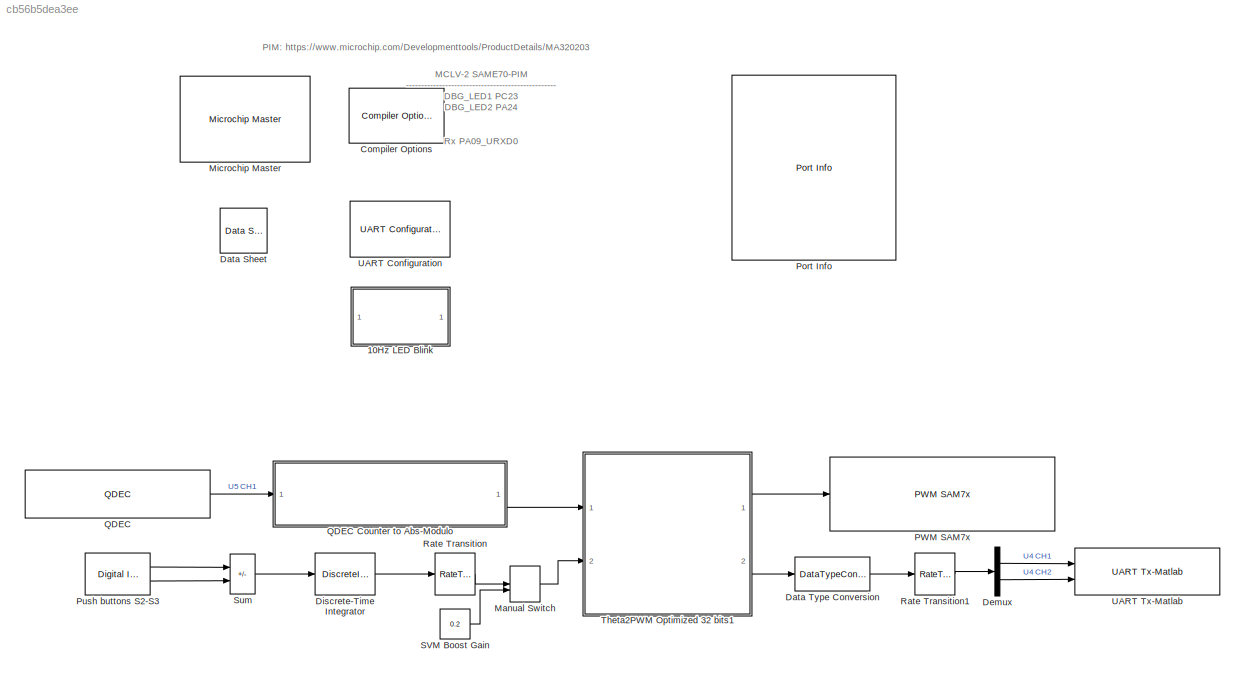
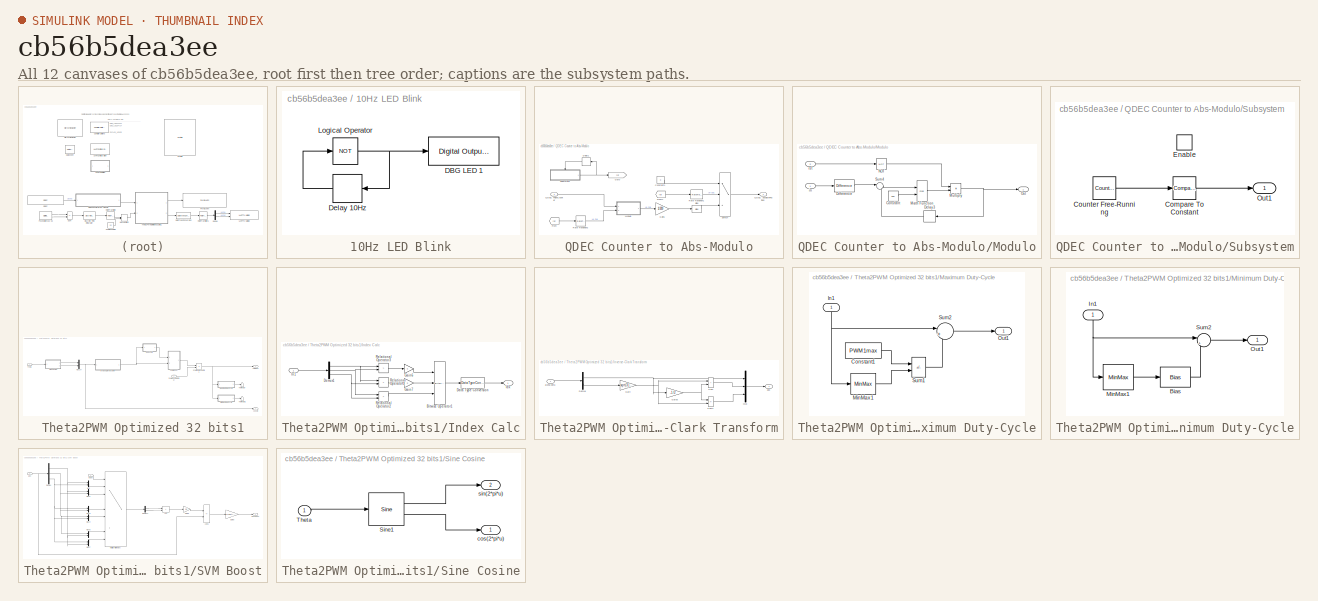
[diagram: thumbnail index - all 12 canvases of the model, root first then tree order]
MODEL slx_cb56b5dea3ee
KIND model
CONFIG AbsTol = auto
CONFIG EnableMultiTasking = on
CONFIG FixedStep = 50e-6
CONFIG MaxStep = auto
CONFIG MinStep = auto
CONFIG RelTol = 1e-3
CONFIG SampleTimeConstraint = Unconstrained
CONFIG Solver = FixedStepDiscrete
CONFIG SolverName = FixedStepDiscrete
CONFIG StartTime = 0.0
CONFIG StopTime = 10.0
BLOCK [SubSystem] 10Hz LED Blink
  Ports = []
  RequestExecContextInheritance = off
BLOCK [Reference] 10Hz LED Blink/DBG LED 1  REF=MCHP_Blockset/Digital IO/Digital Output
Write
  Ports = [1]
  SourceBlock = MCHP_Blockset/Digital IO/Digital Output\nWrite
  SourceProductName = MPLAB Device Blocks for Simulink
  SourceType = Output driver for Digital Output Pins
BLOCK [Delay] 10Hz LED Blink/Delay 10Hz
  DelayLength = 1
  InitialCondition = 0
  InputPortMap = u0
  Ports = [1, 1]
  SampleTime = .05
BLOCK [Logic] 10Hz LED Blink/Logical Operator
  AllPortsSameDT = off
  Operator = NOT
  OutDataTypeStr = boolean
  Ports = [1, 1]
BLOCK [Reference] Compiler Options  REF=MCHP_Blockset/System Configuration/Compiler Options
  Ports = []
  Priority = 1
  SourceBlock = MCHP_Blockset/System Configuration/Compiler Options
  SourceProductName = MPLAB Device Blocks for Simulink
BLOCK [Reference] Data Sheet  REF=MCHP_Blockset/System Info/Data Sheet
  AttributesFormatString = %<cpy_MCHP_Id>
  Ports = []
  SourceBlock = MCHP_Blockset/System Info/Data Sheet
  SourceProductName = MPLAB Device Blocks for Simulink
BLOCK [DataTypeConversion] Data Type Conversion
  ConvertRealWorld = Stored Integer (SI)
  OutDataTypeStr = int16
  RndMeth = Floor
  SaturateOnIntegerOverflow = off
BLOCK [Demux] Demux
  Outputs = 2
  Ports = [1, 2]
BLOCK [DiscreteIntegrator] Discrete-Time Integrator
  ICPrevOutput = DiscIntNeverNeededParam
  ICPrevScaledInput = DiscIntNeverNeededParam
  InitialCondition = 0.2
  InitialConditionSetting = Auto
  LimitOutput = on
  LowerSaturationLimit = 0
  Ports = [1, 1]
  SampleTime = -1
  UpperSaturationLimit = 0.8
  gainval = 0.3
BLOCK [ManualSwitch] Manual Switch
BLOCK [Reference] Microchip Master  REF=MCHP_Blockset/System Configuration/Microchip Master
  Ports = []
  Priority = 1
  SourceBlock = MCHP_Blockset/System Configuration/Microchip Master
  SourceProductName = MPLAB Device Blocks for Simulink
BLOCK [Reference] PWM SAM7x  REF=MCHP_Blockset/PWM IO/PWM SAM7x
  Ports = [1]
  Priority = -2000
  SourceBlock = MCHP_Blockset/PWM IO/PWM SAM7x
  SourceProductName = MPLAB Device Blocks for Simulink
  SourceType = PWM for SAMx7
  UserDataPersistent = on
BLOCK [Reference] Port Info  REF=MCHP_Blockset/System Info/Port Info
  Ports = []
  SourceBlock = MCHP_Blockset/System Info/Port Info
  SourceProductName = MPLAB Device Blocks for Simulink
BLOCK [Reference] Push buttons S2-S3  REF=MCHP_Blockset/Digital IO/Digital Input
  Ports = [0, 2]
  SourceBlock = MCHP_Blockset/Digital IO/Digital Input
  SourceProductName = MPLAB Device Blocks for Simulink
  SourceType = Input driver for Digital Input Pins
BLOCK [Reference] QDEC  REF=MCHP_Blockset/QEI/QDEC
  Ports = [0, 1]
  SourceBlock = MCHP_Blockset/QEI/QDEC
  SourceProductName = MPLAB Device Blocks for Simulink
  SourceType = Ouput Driver for Quadrature Decoder (QDEC)
  UserDataPersistent = on
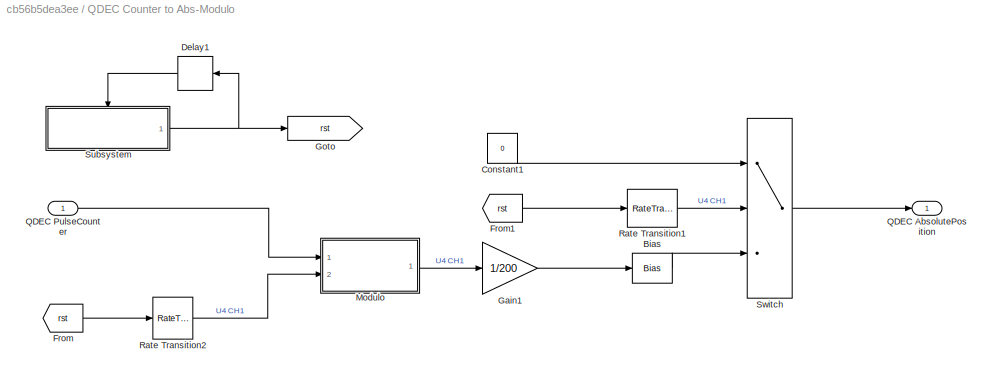
BLOCK [SubSystem] QDEC Counter to Abs-Modulo
  Ports = [1, 1]
  RequestExecContextInheritance = off
BLOCK [Bias] QDEC Counter to Abs-Modulo/Bias
  Bias = 0.26
  SaturateOnIntegerOverflow = off
BLOCK [Constant] QDEC Counter to Abs-Modulo/Constant1
  OutDataTypeStr = Inherit: Inherit via back propagation
  SampleTime = -1
  Value = 0
BLOCK [Delay] QDEC Counter to Abs-Modulo/Delay1
  DelayLength = 1
  InitialCondition = 1
  InputPortMap = u0
  Ports = [1, 1]
BLOCK [From] QDEC Counter to Abs-Modulo/From
  GotoTag = rst
BLOCK [From] QDEC Counter to Abs-Modulo/From1
  GotoTag = rst
BLOCK [Gain] QDEC Counter to Abs-Modulo/Gain1
  Gain = 1/200
  OutDataTypeStr = fixdt(0,32,32)
BLOCK [Goto] QDEC Counter to Abs-Modulo/Goto
  GotoTag = rst
BLOCK [SubSystem] QDEC Counter to Abs-Modulo/Modulo
  Ports = [2, 1]
  RequestExecContextInheritance = off
BLOCK [Constant] QDEC Counter to Abs-Modulo/Modulo/Constant
  OutDataTypeStr = Inherit: Inherit via back propagation
  Value = 200
BLOCK [Delay] QDEC Counter to Abs-Modulo/Modulo/Delay3
  DelayLength = 1
  InitialCondition = 0
  InputPortMap = u0
  Ports = [1, 1]
BLOCK [Reference] QDEC Counter to Abs-Modulo/Modulo/Difference  REF=simulink/Discrete/Difference
  Ports = [1, 1]
  SourceBlock = simulink/Discrete/Difference
  SourceProductBaseCode = SL
  SourceType = Difference
BLOCK [Math] QDEC Counter to Abs-Modulo/Modulo/Math Function
  Operator = mod
  Ports = [2, 1]
BLOCK [Product] QDEC Counter to Abs-Modulo/Modulo/Multiply
  OutDataTypeStr = uint16
  Ports = [2, 1]
BLOCK [Logic] QDEC Counter to Abs-Modulo/Modulo/NOT
  AllPortsSameDT = off
  IconShape = distinctive
  Operator = NOT
  OutDataTypeStr = boolean
  Ports = [1, 1]
BLOCK [Outport] QDEC Counter to Abs-Modulo/Modulo/Out
  VectorParamsAs1DForOutWhenUnconnected = off
BLOCK [Sum] QDEC Counter to Abs-Modulo/Modulo/Sum4
  AccumDataTypeStr = Inherit: Same as first input
  Inputs = |++
  OutDataTypeStr = Inherit: Same as first input
  Ports = [2, 1]
BLOCK [Inport] QDEC Counter to Abs-Modulo/Modulo/in
BLOCK [Inport] QDEC Counter to Abs-Modulo/Modulo/rst
  OutDataTypeStr = boolean
  Port = 2
BLOCK [Outport] QDEC Counter to Abs-Modulo/QDEC AbsolutePosition
  VectorParamsAs1DForOutWhenUnconnected = off
BLOCK [Inport] QDEC Counter to Abs-Modulo/QDEC PulseCounter
BLOCK [RateTransition] QDEC Counter to Abs-Modulo/Rate Transition1
  Deterministic = off
BLOCK [RateTransition] QDEC Counter to Abs-Modulo/Rate Transition2
  Deterministic = off
BLOCK [SubSystem] QDEC Counter to Abs-Modulo/Subsystem
  Ports = [0, 1, 1]
  RequestExecContextInheritance = off
BLOCK [Reference] QDEC Counter to Abs-Modulo/Subsystem/Compare To Constant  REF=simulink/Logic and Bit
Operations/Compare
To Constant
  Ports = [1, 1]
  SourceBlock = simulink/Logic and Bit\nOperations/Compare\nTo Constant
  SourceProductBaseCode = SL
  SourceType = Compare To Constant
BLOCK [Reference] QDEC Counter to Abs-Modulo/Subsystem/Counter Free-Running  REF=simulink/Sources/Counter
Free-Running
  Ports = [0, 1]
  SourceBlock = simulink/Sources/Counter\nFree-Running
  SourceProductBaseCode = SL
  SourceType = Counter Free-Running
BLOCK [EnablePort] QDEC Counter to Abs-Modulo/Subsystem/Enable
  Ports = []
BLOCK [Outport] QDEC Counter to Abs-Modulo/Subsystem/Out1
  VectorParamsAs1DForOutWhenUnconnected = off
BLOCK [Switch] QDEC Counter to Abs-Modulo/Switch
  Criteria = u2 ~= 0
  InputSameDT = off
  SaturateOnIntegerOverflow = off
BLOCK [RateTransition] Rate Transition
BLOCK [RateTransition] Rate Transition1
  OutPortSampleTime = .01
BLOCK [Constant] SVM Boost Gain
  OutDataTypeStr = Inherit: Inherit via back propagation
  Value = 0.2
BLOCK [Sum] Sum
  AccumDataTypeStr = single
  IconShape = rectangular
  Inputs = +-
  OutDataTypeStr = single
  Ports = [2, 1]
BLOCK [SubSystem] Theta2PWM Optimized 32 bits1
  Ports = [2, 2]
  RequestExecContextInheritance = off
  VariantControl = Optimized
BLOCK [SubSystem] Theta2PWM Optimized 32 bits1/Index Calc
  Ports = [1, 1]
  RequestExecContextInheritance = off
BLOCK [Reference] Theta2PWM Optimized 32 bits1/Index Calc/Bitwise Operator1  REF=simulink/Logic and Bit
Operations/Bitwise
Operator
  Ports = [3, 1]
  SourceBlock = simulink/Logic and Bit\nOperations/Bitwise\nOperator
  SourceProductBaseCode = SL
  SourceType = Bitwise Operator
BLOCK [DataTypeConversion] Theta2PWM Optimized 32 bits1/Index Calc/Data Type Conversion
  ConvertRealWorld = Stored Integer (SI)
  OutDataTypeStr = uint32
  RndMeth = Floor
  SaturateOnIntegerOverflow = off
BLOCK [Demux] Theta2PWM Optimized 32 bits1/Index Calc/Demux1
  Outputs = 3
  Ports = [1, 3]
BLOCK [Gain] Theta2PWM Optimized 32 bits1/Index Calc/Gain6
  Gain = 4
  OutDataTypeStr = Inherit: Same as input
BLOCK [Gain] Theta2PWM Optimized 32 bits1/Index Calc/Gain7
  Gain = 2
  OutDataTypeStr = Inherit: Same as input
BLOCK [Outport] Theta2PWM Optimized 32 bits1/Index Calc/Idx
  VectorParamsAs1DForOutWhenUnconnected = off
BLOCK [Inport] Theta2PWM Optimized 32 bits1/Index Calc/In1
BLOCK [RelationalOperator] Theta2PWM Optimized 32 bits1/Index Calc/Relational Operator1
  InputSameDT = off
  Operator = >
  OutDataTypeStr = fixdt(0,32)
  Ports = [2, 1]
BLOCK [RelationalOperator] Theta2PWM Optimized 32 bits1/Index Calc/Relational Operator2
  InputSameDT = off
  Operator = >
  OutDataTypeStr = fixdt(0,32)
  Ports = [2, 1]
BLOCK [RelationalOperator] Theta2PWM Optimized 32 bits1/Index Calc/Relational Operator3
  InputSameDT = off
  Operator = >
  OutDataTypeStr = fixdt(0,32)
  Ports = [2, 1]
BLOCK [SubSystem] Theta2PWM Optimized 32 bits1/Inverse-Clark Transform
  Ports = [1, 1]
  RequestExecContextInheritance = off
BLOCK [Demux] Theta2PWM Optimized 32 bits1/Inverse-Clark Transform/Demux
  Outputs = 2
  Ports = [1, 2]
BLOCK [Gain] Theta2PWM Optimized 32 bits1/Inverse-Clark Transform/Gain
  Gain = sqrt(3)/2
  OutDataTypeStr = Inherit: Inherit via back propagation
  RndMeth = Zero
BLOCK [Gain] Theta2PWM Optimized 32 bits1/Inverse-Clark Transform/Gain3
  Gain = -1/2
  OutDataTypeStr = Inherit: Inherit via back propagation
  RndMeth = Zero
BLOCK [Mux] Theta2PWM Optimized 32 bits1/Inverse-Clark Transform/Mux
  DisplayOption = bar
  Inputs = 3
  Ports = [3, 1]
BLOCK [Sum] Theta2PWM Optimized 32 bits1/Inverse-Clark Transform/Sum
  AccumDataTypeStr = Inherit: Same as first input
  IconShape = rectangular
  OutDataTypeStr = Inherit: Same as first input
  Ports = [2, 1]
  RndMeth = Zero
BLOCK [Sum] Theta2PWM Optimized 32 bits1/Inverse-Clark Transform/Sum1
  AccumDataTypeStr = Inherit: Same as first input
  IconShape = rectangular
  Inputs = +-
  OutDataTypeStr = Inherit: Same as first input
  Ports = [2, 1]
  RndMeth = Zero
  SaturateOnIntegerOverflow = on
BLOCK [Outport] Theta2PWM Optimized 32 bits1/Inverse-Clark Transform/abc
  VectorParamsAs1DForOutWhenUnconnected = off
BLOCK [Inport] Theta2PWM Optimized 32 bits1/Inverse-Clark Transform/alpha beta
BLOCK [SubSystem] Theta2PWM Optimized 32 bits1/Maximum Duty-Cycle
  Commented = on
  Ports = [1, 1]
  RequestExecContextInheritance = off
BLOCK [Constant] Theta2PWM Optimized 32 bits1/Maximum Duty-Cycle/Constant1
  OutDataTypeStr = uint16
  Value = PWM1max
BLOCK [Inport] Theta2PWM Optimized 32 bits1/Maximum Duty-Cycle/In1
BLOCK [MinMax] Theta2PWM Optimized 32 bits1/Maximum Duty-Cycle/MinMax1
  Function = max
  InputSameDT = on
  OutDataTypeStr = int16
  Ports = [1, 1]
BLOCK [Outport] Theta2PWM Optimized 32 bits1/Maximum Duty-Cycle/Out1
  VectorParamsAs1DForOutWhenUnconnected = off
BLOCK [Sum] Theta2PWM Optimized 32 bits1/Maximum Duty-Cycle/Sum1
  AccumDataTypeStr = uint16
  IconShape = rectangular
  Inputs = +-
  OutDataTypeStr = Inherit: Same as accumulator
  Ports = [2, 1]
  RndMeth = Simplest
BLOCK [Sum] Theta2PWM Optimized 32 bits1/Maximum Duty-Cycle/Sum2
  AccumDataTypeStr = uint16
  Inputs = |++
  OutDataTypeStr = Inherit: Same as accumulator
  Ports = [2, 1]
  RndMeth = Simplest
BLOCK [SubSystem] Theta2PWM Optimized 32 bits1/Minimum Duty-Cycle
  Commented = on
  Ports = [1, 1]
  RequestExecContextInheritance = off
BLOCK [Bias] Theta2PWM Optimized 32 bits1/Minimum Duty-Cycle/Bias
  Bias = -round( (2e-6/5e-5) *PWM1max )
  SaturateOnIntegerOverflow = off
BLOCK [Inport] Theta2PWM Optimized 32 bits1/Minimum Duty-Cycle/In1
BLOCK [MinMax] Theta2PWM Optimized 32 bits1/Minimum Duty-Cycle/MinMax1
  InputSameDT = on
  OutDataTypeStr = int16
  Ports = [1, 1]
BLOCK [Outport] Theta2PWM Optimized 32 bits1/Minimum Duty-Cycle/Out1
  VectorParamsAs1DForOutWhenUnconnected = off
BLOCK [Sum] Theta2PWM Optimized 32 bits1/Minimum Duty-Cycle/Sum2
  AccumDataTypeStr = uint16
  Inputs = |+-
  OutDataTypeStr = Inherit: Same as accumulator
  Ports = [2, 1]
  RndMeth = Simplest
BLOCK [Mux] Theta2PWM Optimized 32 bits1/Mux24
  DisplayOption = bar
  Inputs = 2
  Ports = [2, 1]
BLOCK [Outport] Theta2PWM Optimized 32 bits1/PWM abc
  VectorParamsAs1DForOutWhenUnconnected = off
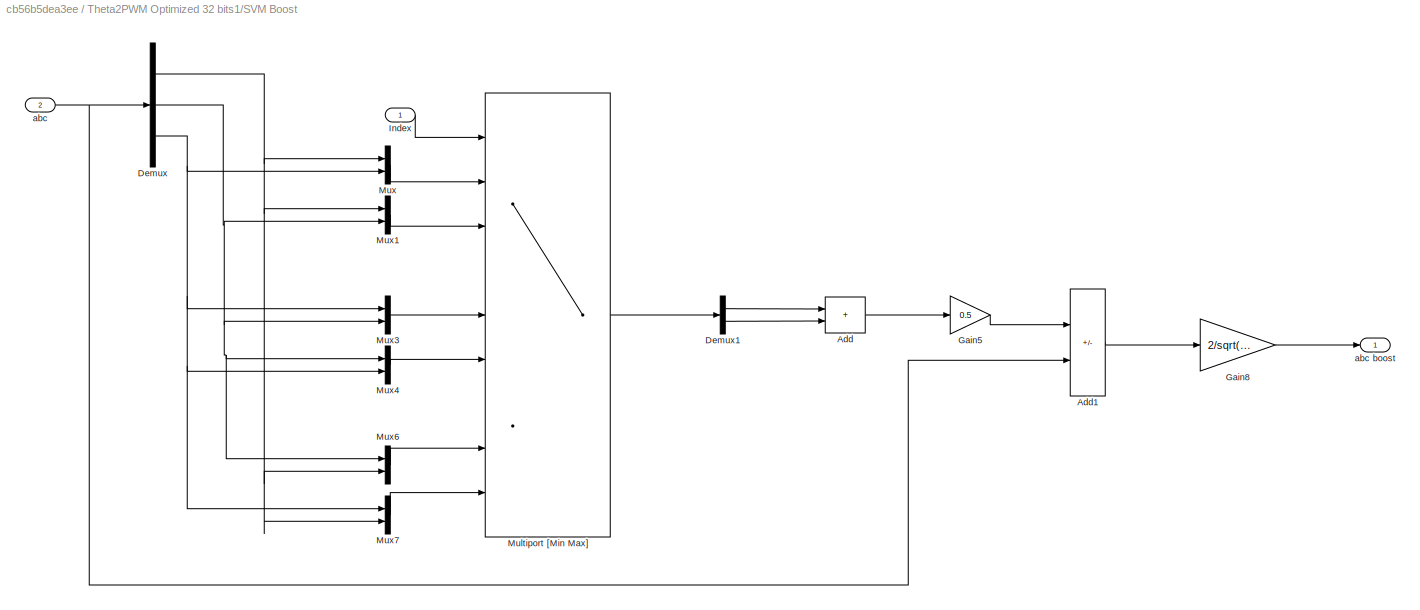
BLOCK [SubSystem] Theta2PWM Optimized 32 bits1/SVM Boost
  Ports = [2, 1]
  RequestExecContextInheritance = off
BLOCK [Inport] Theta2PWM Optimized 32 bits1/SVM Boost Gain [0 1]
  OutMax = 1
  Port = 2
BLOCK [Sum] Theta2PWM Optimized 32 bits1/SVM Boost/Add
  AccumDataTypeStr = Inherit: Same as first input
  IconShape = rectangular
  OutDataTypeStr = Inherit: Same as accumulator
  Ports = [2, 1]
  RndMeth = Zero
BLOCK [Sum] Theta2PWM Optimized 32 bits1/SVM Boost/Add1
  AccumDataTypeStr = Inherit: Same as first input
  IconShape = rectangular
  Inputs = -+
  OutDataTypeStr = Inherit: Same as first input
  Ports = [2, 1]
  RndMeth = Zero
BLOCK [Demux] Theta2PWM Optimized 32 bits1/SVM Boost/Demux
  Outputs = 3
  Ports = [1, 3]
BLOCK [Demux] Theta2PWM Optimized 32 bits1/SVM Boost/Demux1
  Outputs = 2
  Ports = [1, 2]
BLOCK [Gain] Theta2PWM Optimized 32 bits1/SVM Boost/Gain5
  Gain = 0.5
  OutDataTypeStr = Inherit: Same as input
  RndMeth = Zero
BLOCK [Gain] Theta2PWM Optimized 32 bits1/SVM Boost/Gain8
  Gain = 2/sqrt(3)
  ParamDataTypeStr = Inherit: Same as input
  RndMeth = Zero
BLOCK [Inport] Theta2PWM Optimized 32 bits1/SVM Boost/Index
BLOCK [MultiPortSwitch] Theta2PWM Optimized 32 bits1/SVM Boost/Multiport [Min Max]
  DataPortOrder = Zero-based contiguous
  DiagnosticForDefault = None
  InputSameDT = off
  Inputs = 8
  Ports = [9, 1]
  SaturateOnIntegerOverflow = off
  zeroidx = on
BLOCK [Mux] Theta2PWM Optimized 32 bits1/SVM Boost/Mux
  DisplayOption = bar
  Inputs = 2
  Ports = [2, 1]
BLOCK [Mux] Theta2PWM Optimized 32 bits1/SVM Boost/Mux1
  DisplayOption = bar
  Inputs = 2
  Ports = [2, 1]
BLOCK [Mux] Theta2PWM Optimized 32 bits1/SVM Boost/Mux3
  DisplayOption = bar
  Inputs = 2
  Ports = [2, 1]
BLOCK [Mux] Theta2PWM Optimized 32 bits1/SVM Boost/Mux4
  DisplayOption = bar
  Inputs = 2
  Ports = [2, 1]
BLOCK [Mux] Theta2PWM Optimized 32 bits1/SVM Boost/Mux6
  DisplayOption = bar
  Inputs = 2
  Ports = [2, 1]
BLOCK [Mux] Theta2PWM Optimized 32 bits1/SVM Boost/Mux7
  DisplayOption = bar
  Inputs = 2
  Ports = [2, 1]
BLOCK [Inport] Theta2PWM Optimized 32 bits1/SVM Boost/abc
  Port = 2
BLOCK [Outport] Theta2PWM Optimized 32 bits1/SVM Boost/abc boost
  VectorParamsAs1DForOutWhenUnconnected = off
BLOCK [Product] Theta2PWM Optimized 32 bits1/Scaling Max gain is 1
  Inputs = **
  OutDataTypeStr = single
  Ports = [2, 1]
BLOCK [SubSystem] Theta2PWM Optimized 32 bits1/Sine Cosine
  Ports = [1, 2]
  RequestExecContextInheritance = off
BLOCK [Reference] Theta2PWM Optimized 32 bits1/Sine Cosine/Sine1  REF=simulink/Lookup
Tables/Sine
  Ports = [1, 2]
  SourceBlock = simulink/Lookup\nTables/Sine
  SourceProductBaseCode = SL
  SourceType = Sine and Cosine
BLOCK [Inport] Theta2PWM Optimized 32 bits1/Sine Cosine/Theta
BLOCK [Outport] Theta2PWM Optimized 32 bits1/Sine Cosine/cos(2*pi*u)
  VectorParamsAs1DForOutWhenUnconnected = off
BLOCK [Outport] Theta2PWM Optimized 32 bits1/Sine Cosine/sin(2*pi*u)
  Port = 2
  VectorParamsAs1DForOutWhenUnconnected = off
BLOCK [Terminator] Theta2PWM Optimized 32 bits1/Terminator
  Commented = on
BLOCK [Terminator] Theta2PWM Optimized 32 bits1/Terminator1
  Commented = on
BLOCK [Inport] Theta2PWM Optimized 32 bits1/Theta
BLOCK [Outport] Theta2PWM Optimized 32 bits1/cos sin
  Port = 2
  VectorParamsAs1DForOutWhenUnconnected = off
BLOCK [Reference] UART Configuration  REF=MCHP_Blockset/BUS UART/UART Configuration
  Ports = []
  SourceBlock = MCHP_Blockset/BUS UART/UART Configuration
  SourceProductName = MPLAB Device Blocks for Simulink
  SourceType = Configuration for UART peripheral
BLOCK [Reference] UART Tx-Matlab  REF=MCHP_Blockset/BUS UART/UART Tx-Matlab
  Ports = [2]
  SourceBlock = MCHP_Blockset/BUS UART/UART Tx-Matlab
  SourceProductName = MPLAB Device Blocks for Simulink
  SourceType = Higl Level UART protocol
ANNOTATION (root): MCLV-2 SAME70-PIM -------------------------------------------------- DBG_LED1 PC23 DBG_LED2 PA24 Rx PA09_URXD0 Tx PA10_UTXD0 HALLA PA00 - PD13 HALLB PA01 - PD10 HALLC PA16 - PD11 PWM1 PD24 (L) - PA11 (H) PWM2 PD25 (L) - PA12 (H) PWM3 PD26 (L) - PA13 (H) FAULT PD09_FAULT_PWM POT PB00 (not ok on early PIMs) PUSH S2 PC03 PUSH S3 PC01 PIM_V_M1 PD30 PIM_V_M2 PA17 PIM_V_M3 PA21 - PA19
ANNOTATION (root): PIM: https://www.microchip.com/Developmenttools/ProductDetails/MA320203
LINE 10Hz LED Blink/Delay 10Hz:1 -> 10Hz LED Blink/Logical Operator:1
NET 10Hz LED Blink/Logical Operator:1 -> 10Hz LED Blink/DBG LED 1:1, 10Hz LED Blink/Delay 10Hz:1
LINE Data Type Conversion:1 -> Rate Transition1:1
LINE Demux:1 -> UART Tx-Matlab:1
LINE Demux:2 -> UART Tx-Matlab:2
LINE Discrete-Time Integrator:1 -> Rate Transition:1
LINE Manual Switch:1 -> Theta2PWM Optimized 32 bits1:2
LINE Push buttons S2-S3:1 -> Sum:1
LINE Push buttons S2-S3:2 -> Sum:2
LINE QDEC Counter to Abs-Modulo/Bias:1 -> QDEC Counter to Abs-Modulo/Switch:3
LINE QDEC Counter to Abs-Modulo/Constant1:1 -> QDEC Counter to Abs-Modulo/Switch:1
LINE QDEC Counter to Abs-Modulo/Delay1:1 -> QDEC Counter to Abs-Modulo/Subsystem:enable
LINE QDEC Counter to Abs-Modulo/From1:1 -> QDEC Counter to Abs-Modulo/Rate Transition1:1
LINE QDEC Counter to Abs-Modulo/From:1 -> QDEC Counter to Abs-Modulo/Rate Transition2:1
LINE QDEC Counter to Abs-Modulo/Gain1:1 -> QDEC Counter to Abs-Modulo/Bias:1
LINE QDEC Counter to Abs-Modulo/Modulo/Constant:1 -> QDEC Counter to Abs-Modulo/Modulo/Math Function:2
LINE QDEC Counter to Abs-Modulo/Modulo/Delay3:1 -> QDEC Counter to Abs-Modulo/Modulo/Sum4:2
LINE QDEC Counter to Abs-Modulo/Modulo/Difference:1 -> QDEC Counter to Abs-Modulo/Modulo/Sum4:1
LINE QDEC Counter to Abs-Modulo/Modulo/Math Function:1 -> QDEC Counter to Abs-Modulo/Modulo/Multiply:2
NET QDEC Counter to Abs-Modulo/Modulo/Multiply:1 -> QDEC Counter to Abs-Modulo/Modulo/Delay3:1, QDEC Counter to Abs-Modulo/Modulo/Out:1
LINE QDEC Counter to Abs-Modulo/Modulo/NOT:1 -> QDEC Counter to Abs-Modulo/Modulo/Multiply:1
LINE QDEC Counter to Abs-Modulo/Modulo/Sum4:1 -> QDEC Counter to Abs-Modulo/Modulo/Math Function:1
LINE QDEC Counter to Abs-Modulo/Modulo/in:1 -> QDEC Counter to Abs-Modulo/Modulo/Difference:1
LINE QDEC Counter to Abs-Modulo/Modulo/rst:1 -> QDEC Counter to Abs-Modulo/Modulo/NOT:1
LINE QDEC Counter to Abs-Modulo/Modulo:1 -> QDEC Counter to Abs-Modulo/Gain1:1
LINE QDEC Counter to Abs-Modulo/QDEC PulseCounter:1 -> QDEC Counter to Abs-Modulo/Modulo:1
LINE QDEC Counter to Abs-Modulo/Rate Transition1:1 -> QDEC Counter to Abs-Modulo/Switch:2
LINE QDEC Counter to Abs-Modulo/Rate Transition2:1 -> QDEC Counter to Abs-Modulo/Modulo:2
LINE QDEC Counter to Abs-Modulo/Subsystem/Compare To Constant:1 -> QDEC Counter to Abs-Modulo/Subsystem/Out1:1
LINE QDEC Counter to Abs-Modulo/Subsystem/Counter Free-Running:1 -> QDEC Counter to Abs-Modulo/Subsystem/Compare To Constant:1
NET QDEC Counter to Abs-Modulo/Subsystem:1 -> QDEC Counter to Abs-Modulo/Delay1:1, QDEC Counter to Abs-Modulo/Goto:1
LINE QDEC Counter to Abs-Modulo/Switch:1 -> QDEC Counter to Abs-Modulo/QDEC AbsolutePosition:1
LINE QDEC Counter to Abs-Modulo:1 -> Theta2PWM Optimized 32 bits1:1
LINE QDEC:1 -> QDEC Counter to Abs-Modulo:1
LINE Rate Transition1:1 -> Demux:1
LINE Rate Transition:1 -> Manual Switch:1
LINE SVM Boost Gain:1 -> Manual Switch:2
LINE Sum:1 -> Discrete-Time Integrator:1
LINE Theta2PWM Optimized 32 bits1/Index Calc/Bitwise Operator1:1 -> Theta2PWM Optimized 32 bits1/Index Calc/Data Type Conversion:1
LINE Theta2PWM Optimized 32 bits1/Index Calc/Data Type Conversion:1 -> Theta2PWM Optimized 32 bits1/Index Calc/Idx:1
NET Theta2PWM Optimized 32 bits1/Index Calc/Demux1:1 -> Theta2PWM Optimized 32 bits1/Index Calc/Relational Operator1:1, Theta2PWM Optimized 32 bits1/Index Calc/Relational Operator3:1
NET Theta2PWM Optimized 32 bits1/Index Calc/Demux1:2 -> Theta2PWM Optimized 32 bits1/Index Calc/Relational Operator2:1, Theta2PWM Optimized 32 bits1/Index Calc/Relational Operator3:2
NET Theta2PWM Optimized 32 bits1/Index Calc/Demux1:3 -> Theta2PWM Optimized 32 bits1/Index Calc/Relational Operator1:2, Theta2PWM Optimized 32 bits1/Index Calc/Relational Operator2:2
LINE Theta2PWM Optimized 32 bits1/Index Calc/Gain6:1 -> Theta2PWM Optimized 32 bits1/Index Calc/Bitwise Operator1:1
LINE Theta2PWM Optimized 32 bits1/Index Calc/Gain7:1 -> Theta2PWM Optimized 32 bits1/Index Calc/Bitwise Operator1:2
LINE Theta2PWM Optimized 32 bits1/Index Calc/In1:1 -> Theta2PWM Optimized 32 bits1/Index Calc/Demux1:1
LINE Theta2PWM Optimized 32 bits1/Index Calc/Relational Operator1:1 -> Theta2PWM Optimized 32 bits1/Index Calc/Gain7:1
LINE Theta2PWM Optimized 32 bits1/Index Calc/Relational Operator2:1 -> Theta2PWM Optimized 32 bits1/Index Calc/Bitwise Operator1:3
LINE Theta2PWM Optimized 32 bits1/Index Calc/Relational Operator3:1 -> Theta2PWM Optimized 32 bits1/Index Calc/Gain6:1
LINE Theta2PWM Optimized 32 bits1/Index Calc:1 -> Theta2PWM Optimized 32 bits1/SVM Boost:1
NET Theta2PWM Optimized 32 bits1/Inverse-Clark Transform/Demux:1 -> Theta2PWM Optimized 32 bits1/Inverse-Clark Transform/Gain3:1, Theta2PWM Optimized 32 bits1/Inverse-Clark Transform/Mux:1
LINE Theta2PWM Optimized 32 bits1/Inverse-Clark Transform/Demux:2 -> Theta2PWM Optimized 32 bits1/Inverse-Clark Transform/Gain:1
NET Theta2PWM Optimized 32 bits1/Inverse-Clark Transform/Gain3:1 -> Theta2PWM Optimized 32 bits1/Inverse-Clark Transform/Sum1:1, Theta2PWM Optimized 32 bits1/Inverse-Clark Transform/Sum:2
NET Theta2PWM Optimized 32 bits1/Inverse-Clark Transform/Gain:1 -> Theta2PWM Optimized 32 bits1/Inverse-Clark Transform/Sum1:2, Theta2PWM Optimized 32 bits1/Inverse-Clark Transform/Sum:1
LINE Theta2PWM Optimized 32 bits1/Inverse-Clark Transform/Mux:1 -> Theta2PWM Optimized 32 bits1/Inverse-Clark Transform/abc:1
LINE Theta2PWM Optimized 32 bits1/Inverse-Clark Transform/Sum1:1 -> Theta2PWM Optimized 32 bits1/Inverse-Clark Transform/Mux:3
LINE Theta2PWM Optimized 32 bits1/Inverse-Clark Transform/Sum:1 -> Theta2PWM Optimized 32 bits1/Inverse-Clark Transform/Mux:2
LINE Theta2PWM Optimized 32 bits1/Inverse-Clark Transform/alpha beta:1 -> Theta2PWM Optimized 32 bits1/Inverse-Clark Transform/Demux:1
NET Theta2PWM Optimized 32 bits1/Inverse-Clark Transform:1 -> Theta2PWM Optimized 32 bits1/Index Calc:1, Theta2PWM Optimized 32 bits1/SVM Boost:2
LINE Theta2PWM Optimized 32 bits1/Maximum Duty-Cycle/Constant1:1 -> Theta2PWM Optimized 32 bits1/Maximum Duty-Cycle/Sum1:1
NET Theta2PWM Optimized 32 bits1/Maximum Duty-Cycle/In1:1 -> Theta2PWM Optimized 32 bits1/Maximum Duty-Cycle/MinMax1:1, Theta2PWM Optimized 32 bits1/Maximum Duty-Cycle/Sum2:1
LINE Theta2PWM Optimized 32 bits1/Maximum Duty-Cycle/MinMax1:1 -> Theta2PWM Optimized 32 bits1/Maximum Duty-Cycle/Sum1:2
LINE Theta2PWM Optimized 32 bits1/Maximum Duty-Cycle/Sum1:1 -> Theta2PWM Optimized 32 bits1/Maximum Duty-Cycle/Sum2:2
LINE Theta2PWM Optimized 32 bits1/Maximum Duty-Cycle/Sum2:1 -> Theta2PWM Optimized 32 bits1/Maximum Duty-Cycle/Out1:1
LINE Theta2PWM Optimized 32 bits1/Maximum Duty-Cycle:1 -> Theta2PWM Optimized 32 bits1/Terminator:1
LINE Theta2PWM Optimized 32 bits1/Minimum Duty-Cycle/Bias:1 -> Theta2PWM Optimized 32 bits1/Minimum Duty-Cycle/Sum2:2
NET Theta2PWM Optimized 32 bits1/Minimum Duty-Cycle/In1:1 -> Theta2PWM Optimized 32 bits1/Minimum Duty-Cycle/MinMax1:1, Theta2PWM Optimized 32 bits1/Minimum Duty-Cycle/Sum2:1
LINE Theta2PWM Optimized 32 bits1/Minimum Duty-Cycle/MinMax1:1 -> Theta2PWM Optimized 32 bits1/Minimum Duty-Cycle/Bias:1
LINE Theta2PWM Optimized 32 bits1/Minimum Duty-Cycle/Sum2:1 -> Theta2PWM Optimized 32 bits1/Minimum Duty-Cycle/Out1:1
LINE Theta2PWM Optimized 32 bits1/Minimum Duty-Cycle:1 -> Theta2PWM Optimized 32 bits1/Terminator1:1
NET Theta2PWM Optimized 32 bits1/Mux24:1 -> Theta2PWM Optimized 32 bits1/Inverse-Clark Transform:1, Theta2PWM Optimized 32 bits1/cos sin:1
LINE Theta2PWM Optimized 32 bits1/SVM Boost Gain [0 1]:1 -> Theta2PWM Optimized 32 bits1/Scaling Max gain is 1:2
LINE Theta2PWM Optimized 32 bits1/SVM Boost/Add1:1 -> Theta2PWM Optimized 32 bits1/SVM Boost/Gain8:1
LINE Theta2PWM Optimized 32 bits1/SVM Boost/Add:1 -> Theta2PWM Optimized 32 bits1/SVM Boost/Gain5:1
LINE Theta2PWM Optimized 32 bits1/SVM Boost/Demux1:1 -> Theta2PWM Optimized 32 bits1/SVM Boost/Add:1
LINE Theta2PWM Optimized 32 bits1/SVM Boost/Demux1:2 -> Theta2PWM Optimized 32 bits1/SVM Boost/Add:2
NET Theta2PWM Optimized 32 bits1/SVM Boost/Demux:1 -> Theta2PWM Optimized 32 bits1/SVM Boost/Mux1:1, Theta2PWM Optimized 32 bits1/SVM Boost/Mux6:2, Theta2PWM Optimized 32 bits1/SVM Boost/Mux7:2, Theta2PWM Optimized 32 bits1/SVM Boost/Mux:1
NET Theta2PWM Optimized 32 bits1/SVM Boost/Demux:2 -> Theta2PWM Optimized 32 bits1/SVM Boost/Mux1:2, Theta2PWM Optimized 32 bits1/SVM Boost/Mux3:2, Theta2PWM Optimized 32 bits1/SVM Boost/Mux4:1, Theta2PWM Optimized 32 bits1/SVM Boost/Mux6:1
NET Theta2PWM Optimized 32 bits1/SVM Boost/Demux:3 -> Theta2PWM Optimized 32 bits1/SVM Boost/Mux3:1, Theta2PWM Optimized 32 bits1/SVM Boost/Mux4:2, Theta2PWM Optimized 32 bits1/SVM Boost/Mux7:1, Theta2PWM Optimized 32 bits1/SVM Boost/Mux:2
LINE Theta2PWM Optimized 32 bits1/SVM Boost/Gain5:1 -> Theta2PWM Optimized 32 bits1/SVM Boost/Add1:1
LINE Theta2PWM Optimized 32 bits1/SVM Boost/Gain8:1 -> Theta2PWM Optimized 32 bits1/SVM Boost/abc boost:1
LINE Theta2PWM Optimized 32 bits1/SVM Boost/Index:1 -> Theta2PWM Optimized 32 bits1/SVM Boost/Multiport [Min Max]:1
LINE Theta2PWM Optimized 32 bits1/SVM Boost/Multiport [Min Max]:1 -> Theta2PWM Optimized 32 bits1/SVM Boost/Demux1:1
LINE Theta2PWM Optimized 32 bits1/SVM Boost/Mux1:1 -> Theta2PWM Optimized 32 bits1/SVM Boost/Multiport [Min Max]:3
LINE Theta2PWM Optimized 32 bits1/SVM Boost/Mux3:1 -> Theta2PWM Optimized 32 bits1/SVM Boost/Multiport [Min Max]:5
LINE Theta2PWM Optimized 32 bits1/SVM Boost/Mux4:1 -> Theta2PWM Optimized 32 bits1/SVM Boost/Multiport [Min Max]:6
LINE Theta2PWM Optimized 32 bits1/SVM Boost/Mux6:1 -> Theta2PWM Optimized 32 bits1/SVM Boost/Multiport [Min Max]:8
LINE Theta2PWM Optimized 32 bits1/SVM Boost/Mux7:1 -> Theta2PWM Optimized 32 bits1/SVM Boost/Multiport [Min Max]:9
LINE Theta2PWM Optimized 32 bits1/SVM Boost/Mux:1 -> Theta2PWM Optimized 32 bits1/SVM Boost/Multiport [Min Max]:2
NET Theta2PWM Optimized 32 bits1/SVM Boost/abc:1 -> Theta2PWM Optimized 32 bits1/SVM Boost/Add1:2, Theta2PWM Optimized 32 bits1/SVM Boost/Demux:1
LINE Theta2PWM Optimized 32 bits1/SVM Boost:1 -> Theta2PWM Optimized 32 bits1/Scaling Max gain is 1:1
NET Theta2PWM Optimized 32 bits1/Scaling Max gain is 1:1 -> Theta2PWM Optimized 32 bits1/Maximum Duty-Cycle:1, Theta2PWM Optimized 32 bits1/Minimum Duty-Cycle:1, Theta2PWM Optimized 32 bits1/PWM abc:1
LINE Theta2PWM Optimized 32 bits1/Sine Cosine/Sine1:1 -> Theta2PWM Optimized 32 bits1/Sine Cosine/sin(2*pi*u):1
LINE Theta2PWM Optimized 32 bits1/Sine Cosine/Sine1:2 -> Theta2PWM Optimized 32 bits1/Sine Cosine/cos(2*pi*u):1
LINE Theta2PWM Optimized 32 bits1/Sine Cosine/Theta:1 -> Theta2PWM Optimized 32 bits1/Sine Cosine/Sine1:1
LINE Theta2PWM Optimized 32 bits1/Sine Cosine:1 -> Theta2PWM Optimized 32 bits1/Mux24:1
LINE Theta2PWM Optimized 32 bits1/Sine Cosine:2 -> Theta2PWM Optimized 32 bits1/Mux24:2
LINE Theta2PWM Optimized 32 bits1/Theta:1 -> Theta2PWM Optimized 32 bits1/Sine Cosine:1
LINE Theta2PWM Optimized 32 bits1:1 -> PWM SAM7x:1
LINE Theta2PWM Optimized 32 bits1:2 -> Data Type Conversion:1
note: NET lines group one-source signal fan-out (src -> all destinations, sorted); 1:1 wires keep LINE
